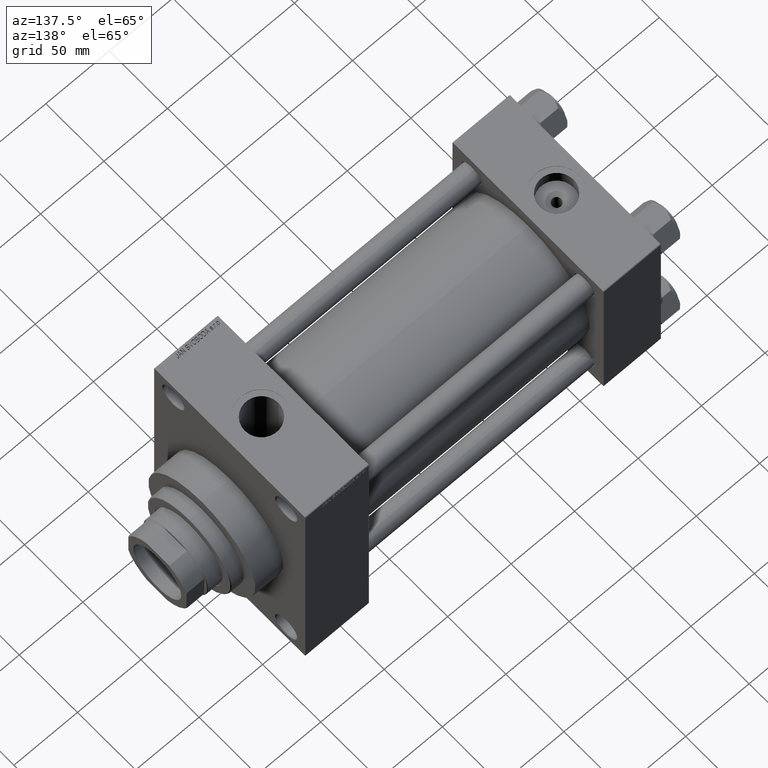
[diagram: clean part render]
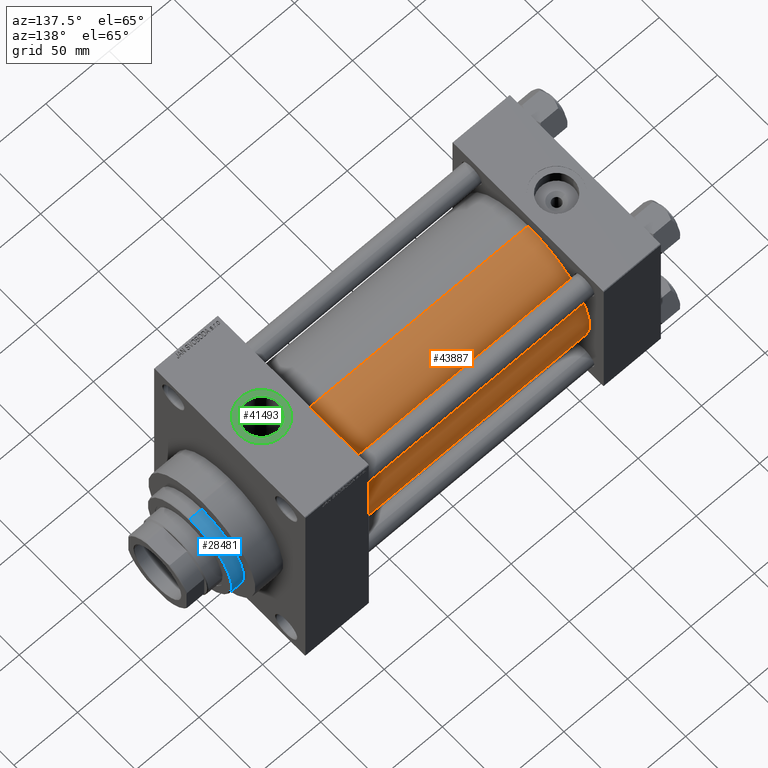
[diagram: same view with three faces highlighted in distinct colors, each labeled with its STEP entity id]
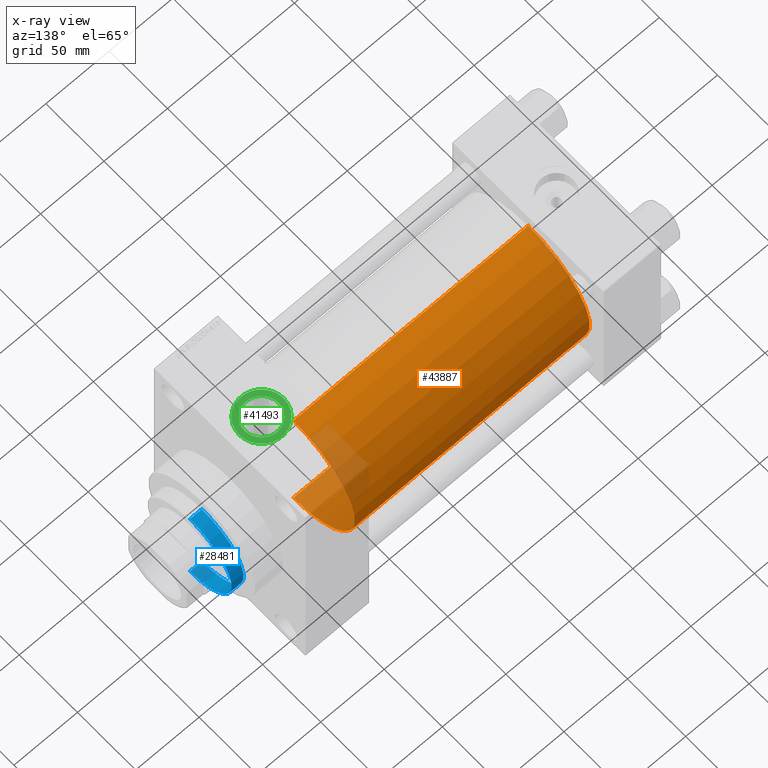
[diagram: x-ray of the same camera — body ghosted, the three highlighted faces saturated]
A machine part, auxiliary view with three faces highlighted in distinct colors.
The next image is the same camera in x-ray (body ghosted, the three faces saturated) — at least one of them is partly hidden behind the body in this view.
Their STEP definitions:

[orange] entity #43887 — the highlighted cylindrical surface (partial cylindrical patch) has radius 53 mm, axis along (-1, -0, -0).
#892 = ORIENTED_EDGE ( 'NONE', *, *, #3116, .F. ) ;
#1091 = LINE ( 'NONE', #45989, #18473 ) ;
#1423 = CARTESIAN_POINT ( 'NONE',  ( 229.9999999999999716, -2.602085213965210642E-15, 0.000000000000000000 ) ) ;
#2240 = ORIENTED_EDGE ( 'NONE', *, *, #22270, .F. ) ;
#2565 = DIRECTION ( 'NONE',  ( -1.000000000000000000, -0.000000000000000000, -0.000000000000000000 ) ) ;
#3116 = EDGE_CURVE ( 'NONE', #5532, #35063, #31956, .T. ) ;
#4488 = AXIS2_PLACEMENT_3D ( 'NONE', #1423, #11584, #40787 ) ;
#5532 = VERTEX_POINT ( 'NONE', #20306 ) ;
#6359 = DIRECTION ( 'NONE',  ( -1.000000000000000000, -0.000000000000000000, -0.000000000000000000 ) ) ;
#10642 = CARTESIAN_POINT ( 'NONE',  ( 229.9999999999999716, 3.888542821515762466E-15, -53.00000000000000711 ) ) ;
#11378 = EDGE_CURVE ( 'NONE', #46666, #29640, #1091, .T. ) ;
#11584 = DIRECTION ( 'NONE',  ( 1.000000000000000000, 0.000000000000000000, 0.000000000000000000 ) ) ;
#14750 = CARTESIAN_POINT ( 'NONE',  ( 44.99999999999998579, 3.888542821515762466E-15, -53.00000000000000711 ) ) ;
#18473 = VECTOR ( 'NONE', #23556, 1000.000000000000000 ) ;
#18761 = ORIENTED_EDGE ( 'NONE', *, *, #11378, .T. ) ;
#20306 = CARTESIAN_POINT ( 'NONE',  ( 229.9999999999999716, -2.602085213965210642E-15, 53.00000000000000711 ) ) ;
#20507 = CARTESIAN_POINT ( 'NONE',  ( 44.99999999999998579, -2.602085213965210642E-15, 53.00000000000000711 ) ) ;
#22270 = EDGE_CURVE ( 'NONE', #46666, #5532, #29919, .T. ) ;
#23556 = DIRECTION ( 'NONE',  ( -1.000000000000000000, -0.000000000000000000, -0.000000000000000000 ) ) ;
#24308 = CARTESIAN_POINT ( 'NONE',  ( 229.9999999999999716, -2.602085213965210642E-15, 0.000000000000000000 ) ) ;
#24786 = FACE_OUTER_BOUND ( 'NONE', #33484, .T. ) ;
#28342 = VECTOR ( 'NONE', #6359, 1000.000000000000000 ) ;
#28903 = DIRECTION ( 'NONE',  ( 1.000000000000000000, -0.000000000000000000, 0.000000000000000000 ) ) ;
#29640 = VERTEX_POINT ( 'NONE', #14750 ) ;
#29919 = CIRCLE ( 'NONE', #4488, 53.00000000000000711 ) ;
#31956 = LINE ( 'NONE', #39432, #28342 ) ;
#32056 = CARTESIAN_POINT ( 'NONE',  ( 44.99999999999998579, -2.602085213965210642E-15, 0.000000000000000000 ) ) ;
#32905 = DIRECTION ( 'NONE',  ( 0.000000000000000000, 0.000000000000000000, 1.000000000000000000 ) ) ;
#33484 = EDGE_LOOP ( 'NONE', ( #2240, #18761, #36160, #892 ) ) ;
#35063 = VERTEX_POINT ( 'NONE', #20507 ) ;
#36160 = ORIENTED_EDGE ( 'NONE', *, *, #37914, .T. ) ;
#36491 = CIRCLE ( 'NONE', #44966, 53.00000000000000711 ) ;
#37914 = EDGE_CURVE ( 'NONE', #29640, #35063, #36491, .T. ) ;
#38964 = AXIS2_PLACEMENT_3D ( 'NONE', #24308, #2565, #32905 ) ;
#39432 = CARTESIAN_POINT ( 'NONE',  ( 229.9999999999999716, -2.602085213965210642E-15, 53.00000000000000711 ) ) ;
#40787 = DIRECTION ( 'NONE',  ( 0.000000000000000000, 0.000000000000000000, -1.000000000000000000 ) ) ;
#43614 = DIRECTION ( 'NONE',  ( 0.000000000000000000, 0.000000000000000000, 1.000000000000000000 ) ) ;
#43887 = ADVANCED_FACE ( 'NONE', ( #24786 ), #43993, .T. ) ;
#43993 = CYLINDRICAL_SURFACE ( 'NONE', #38964, 53.00000000000000711 ) ;
#44966 = AXIS2_PLACEMENT_3D ( 'NONE', #32056, #28903, #43614 ) ;
#45989 = CARTESIAN_POINT ( 'NONE',  ( 229.9999999999999716, 3.888542821515762466E-15, -53.00000000000000711 ) ) ;
#46666 = VERTEX_POINT ( 'NONE', #10642 ) ;

[blue] entity #28481 — the highlighted cylindrical surface (partial cylindrical patch) has radius 36 mm, axis along (-1, 0, 0).
#157 = AXIS2_PLACEMENT_3D ( 'NONE', #5864, #24458, #42557 ) ;
#1086 = AXIS2_PLACEMENT_3D ( 'NONE', #14833, #40890, #17991 ) ;
#2787 = CARTESIAN_POINT ( 'NONE',  ( 36.00000000000000000, 4.408728476930470856E-15, 52.76000000000001933 ) ) ;
#4592 = VERTEX_POINT ( 'NONE', #20119 ) ;
#5452 = AXIS2_PLACEMENT_3D ( 'NONE', #26696, #23076, #38021 ) ;
#5864 = CARTESIAN_POINT ( 'NONE',  ( 0.000000000000000000, 0.000000000000000000, 43.25999999999999801 ) ) ;
#7527 = VERTEX_POINT ( 'NONE', #2787 ) ;
#7596 = CARTESIAN_POINT ( 'NONE',  ( -36.00000000000000000, 0.000000000000000000, 52.76000000000001933 ) ) ;
#8029 = VERTEX_POINT ( 'NONE', #35935 ) ;
#9142 = CARTESIAN_POINT ( 'NONE',  ( 36.00000000000000000, 4.408728476930470856E-15, 53.26000000000000512 ) ) ;
#9253 = EDGE_CURVE ( 'NONE', #21863, #8029, #24619, .T. ) ;
#11967 = CYLINDRICAL_SURFACE ( 'NONE', #5452, 36.00000000000000000 ) ;
#14833 = CARTESIAN_POINT ( 'NONE',  ( 0.000000000000000000, 0.000000000000000000, 52.76000000000001933 ) ) ;
#15105 = FACE_OUTER_BOUND ( 'NONE', #30126, .T. ) ;
#15420 = ORIENTED_EDGE ( 'NONE', *, *, #40716, .T. ) ;
#16139 = LINE ( 'NONE', #9142, #19140 ) ;
#17111 = EDGE_CURVE ( 'NONE', #8029, #4592, #34096, .T. ) ;
#17991 = DIRECTION ( 'NONE',  ( 1.000000000000000000, 0.000000000000000000, 0.000000000000000000 ) ) ;
#19140 = VECTOR ( 'NONE', #34740, 1000.000000000000000 ) ;
#19209 = ORIENTED_EDGE ( 'NONE', *, *, #9253, .T. ) ;
#20119 = CARTESIAN_POINT ( 'NONE',  ( 36.00000000000000000, 4.408728476930470856E-15, 43.25999999999999801 ) ) ;
#21424 = EDGE_CURVE ( 'NONE', #7527, #4592, #16139, .T. ) ;
#21863 = VERTEX_POINT ( 'NONE', #7596 ) ;
#23076 = DIRECTION ( 'NONE',  ( -0.000000000000000000, -0.000000000000000000, -1.000000000000000000 ) ) ;
#24239 = CIRCLE ( 'NONE', #1086, 36.00000000000000000 ) ;
#24458 = DIRECTION ( 'NONE',  ( 0.000000000000000000, 0.000000000000000000, 1.000000000000000000 ) ) ;
#24619 = LINE ( 'NONE', #39327, #39215 ) ;
#24861 = DIRECTION ( 'NONE',  ( -0.000000000000000000, -0.000000000000000000, -1.000000000000000000 ) ) ;
#26696 = CARTESIAN_POINT ( 'NONE',  ( 0.000000000000000000, 0.000000000000000000, 53.26000000000000512 ) ) ;
#27248 = ORIENTED_EDGE ( 'NONE', *, *, #21424, .F. ) ;
#28481 = ADVANCED_FACE ( 'NONE', ( #15105 ), #11967, .T. ) ;
#30126 = EDGE_LOOP ( 'NONE', ( #27248, #15420, #19209, #31494 ) ) ;
#31494 = ORIENTED_EDGE ( 'NONE', *, *, #17111, .T. ) ;
#34096 = CIRCLE ( 'NONE', #157, 36.00000000000000000 ) ;
#34740 = DIRECTION ( 'NONE',  ( -0.000000000000000000, -0.000000000000000000, -1.000000000000000000 ) ) ;
#35935 = CARTESIAN_POINT ( 'NONE',  ( -36.00000000000000000, 0.000000000000000000, 43.25999999999999801 ) ) ;
#38021 = DIRECTION ( 'NONE',  ( -1.000000000000000000, 0.000000000000000000, 0.000000000000000000 ) ) ;
#39215 = VECTOR ( 'NONE', #24861, 1000.000000000000000 ) ;
#39327 = CARTESIAN_POINT ( 'NONE',  ( -36.00000000000000000, 0.000000000000000000, 53.26000000000000512 ) ) ;
#40716 = EDGE_CURVE ( 'NONE', #7527, #21863, #24239, .T. ) ;
#40890 = DIRECTION ( 'NONE',  ( 0.000000000000000000, 0.000000000000000000, -1.000000000000000000 ) ) ;
#42557 = DIRECTION ( 'NONE',  ( 1.000000000000000000, 0.000000000000000000, 0.000000000000000000 ) ) ;

[green] entity #41493 — the highlighted planar face has unit normal (0, 0, 1).
#2960 = CIRCLE ( 'NONE', #40722, 13.22000000000000952 ) ;
#4269 = FACE_OUTER_BOUND ( 'NONE', #45704, .T. ) ;
#4406 = DIRECTION ( 'NONE',  ( 1.000000000000000000, 0.000000000000000000, 0.000000000000000000 ) ) ;
#4563 = ORIENTED_EDGE ( 'NONE', *, *, #43835, .T. ) ;
#5089 = CARTESIAN_POINT ( 'NONE',  ( 268.2200000000000273, 1.618983068472796024E-15, 94.79999999999996874 ) ) ;
#5384 = ORIENTED_EDGE ( 'NONE', *, *, #10383, .T. ) ;
#5401 = DIRECTION ( 'NONE',  ( 1.000000000000000000, 0.000000000000000000, -0.000000000000000000 ) ) ;
#5544 = CARTESIAN_POINT ( 'NONE',  ( 241.7800000000000296, 0.000000000000000000, 94.79999999999996874 ) ) ;
#7406 = FACE_BOUND ( 'NONE', #42564, .T. ) ;
#7790 = CARTESIAN_POINT ( 'NONE',  ( 255.0000000000000000, 0.000000000000000000, 94.79999999999996874 ) ) ;
#8754 = CARTESIAN_POINT ( 'NONE',  ( 237.5000000000000284, 2.143131898507868248E-15, 94.79999999999996874 ) ) ;
#8786 = EDGE_CURVE ( 'NONE', #19910, #39261, #2960, .T. ) ;
#8907 = ORIENTED_EDGE ( 'NONE', *, *, #8786, .T. ) ;
#10383 = EDGE_CURVE ( 'NONE', #39261, #19910, #15368, .T. ) ;
#10780 = DIRECTION ( 'NONE',  ( -0.000000000000000000, -0.000000000000000000, -1.000000000000000000 ) ) ;
#12498 = DIRECTION ( 'NONE',  ( 0.000000000000000000, 0.000000000000000000, 1.000000000000000000 ) ) ;
#12649 = PLANE ( 'NONE',  #46625 ) ;
#13835 = AXIS2_PLACEMENT_3D ( 'NONE', #43845, #10780, #40223 ) ;
#15368 = CIRCLE ( 'NONE', #13835, 13.22000000000000952 ) ;
#16967 = VERTEX_POINT ( 'NONE', #8754 ) ;
#18418 = DIRECTION ( 'NONE',  ( 0.000000000000000000, 0.000000000000000000, 1.000000000000000000 ) ) ;
#18762 = CARTESIAN_POINT ( 'NONE',  ( 255.0000000000000000, 0.000000000000000000, 94.79999999999996874 ) ) ;
#19910 = VERTEX_POINT ( 'NONE', #5544 ) ;
#20483 = CIRCLE ( 'NONE', #47440, 17.50000000000001421 ) ;
#22048 = CARTESIAN_POINT ( 'NONE',  ( 255.0000000000000000, 0.000000000000000000, 94.79999999999996874 ) ) ;
#25484 = AXIS2_PLACEMENT_3D ( 'NONE', #41221, #12498, #27223 ) ;
#27223 = DIRECTION ( 'NONE',  ( 1.000000000000000000, 0.000000000000000000, 0.000000000000000000 ) ) ;
#27291 = EDGE_CURVE ( 'NONE', #28554, #16967, #41613, .T. ) ;
#28554 = VERTEX_POINT ( 'NONE', #31034 ) ;
#29624 = DIRECTION ( 'NONE',  ( 0.000000000000000000, 0.000000000000000000, 1.000000000000000000 ) ) ;
#31034 = CARTESIAN_POINT ( 'NONE',  ( 272.5000000000000000, 0.000000000000000000, 94.79999999999996874 ) ) ;
#32067 = ORIENTED_EDGE ( 'NONE', *, *, #27291, .T. ) ;
#33392 = DIRECTION ( 'NONE',  ( -0.000000000000000000, -0.000000000000000000, -1.000000000000000000 ) ) ;
#39261 = VERTEX_POINT ( 'NONE', #5089 ) ;
#40223 = DIRECTION ( 'NONE',  ( 1.000000000000000000, 0.000000000000000000, 0.000000000000000000 ) ) ;
#40722 = AXIS2_PLACEMENT_3D ( 'NONE', #7790, #33392, #4406 ) ;
#41221 = CARTESIAN_POINT ( 'NONE',  ( 255.0000000000000000, 0.000000000000000000, 94.79999999999996874 ) ) ;
#41493 = ADVANCED_FACE ( 'NONE', ( #7406, #4269 ), #12649, .T. ) ;
#41613 = CIRCLE ( 'NONE', #25484, 17.50000000000001421 ) ;
#42564 = EDGE_LOOP ( 'NONE', ( #8907, #5384 ) ) ;
#42870 = DIRECTION ( 'NONE',  ( 1.000000000000000000, 0.000000000000000000, 0.000000000000000000 ) ) ;
#43835 = EDGE_CURVE ( 'NONE', #16967, #28554, #20483, .T. ) ;
#43845 = CARTESIAN_POINT ( 'NONE',  ( 255.0000000000000000, 0.000000000000000000, 94.79999999999996874 ) ) ;
#45704 = EDGE_LOOP ( 'NONE', ( #32067, #4563 ) ) ;
#46625 = AXIS2_PLACEMENT_3D ( 'NONE', #18762, #29624, #5401 ) ;
#47440 = AXIS2_PLACEMENT_3D ( 'NONE', #22048, #18418, #42870 ) ;